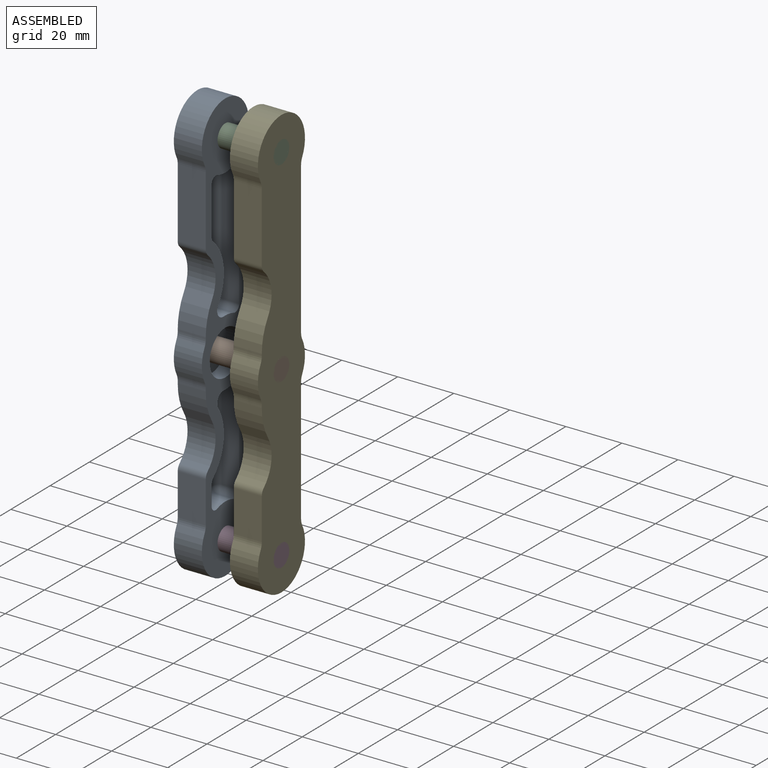
[diagram: assembled view]
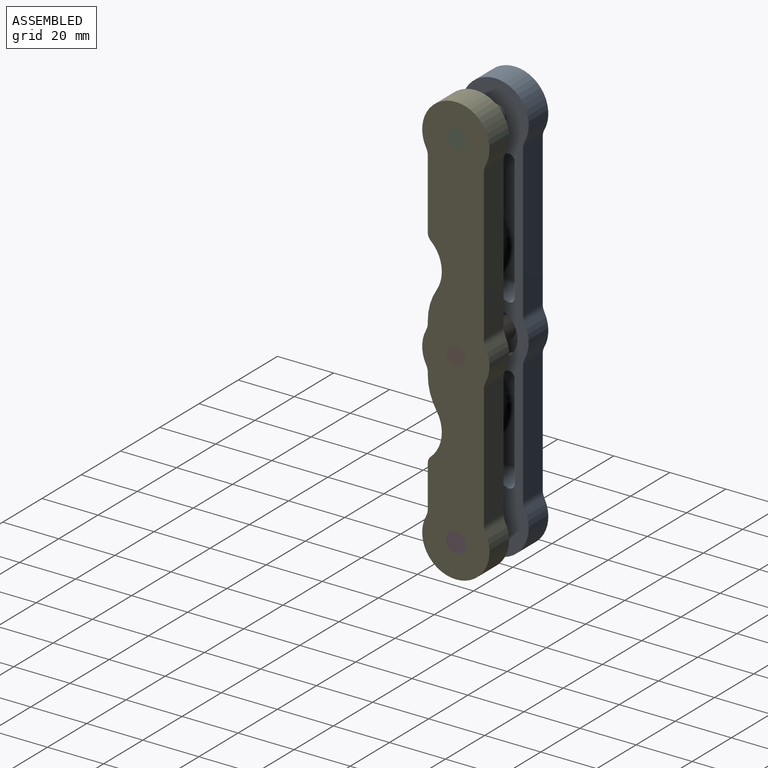
[diagram: assembled view, second angle]
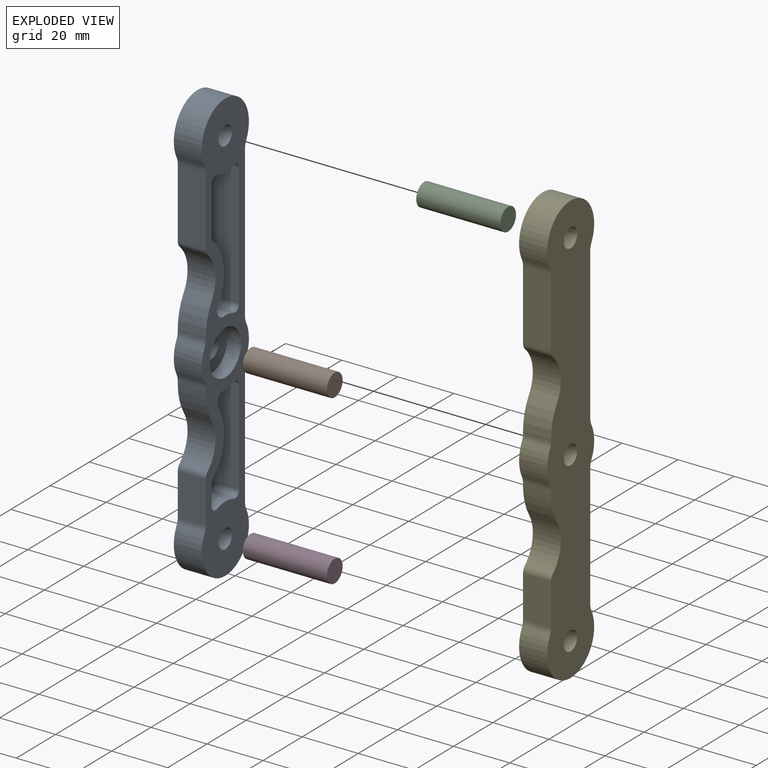
[diagram: exploded view]
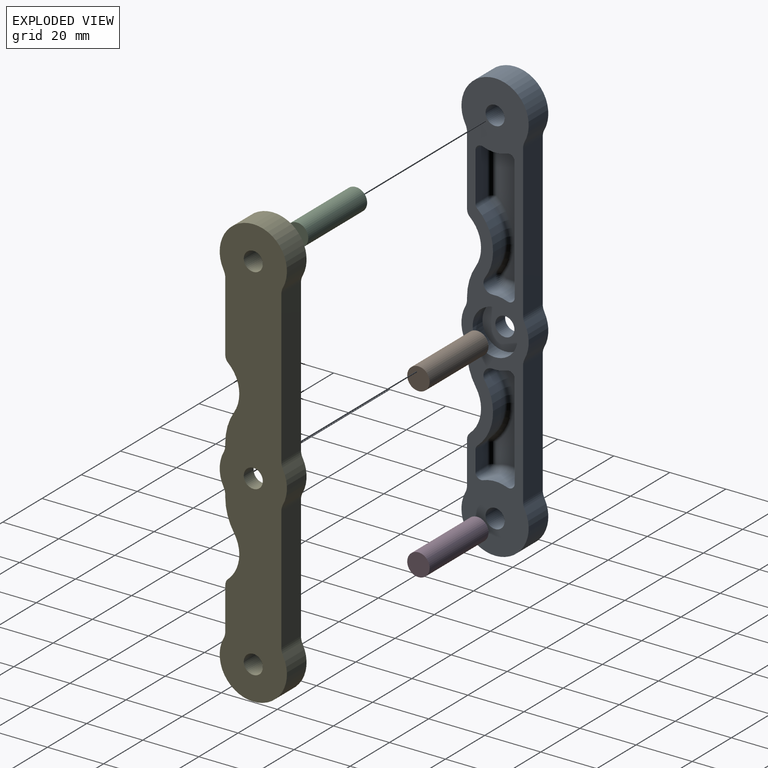
[diagram: exploded view, second angle]
ASSEMBLY  parts=5 mates=4
PART A: 73 faces, bbox 10x24x154 mm
  f0: cylinder r=2mm len=6mm, axis (-1,0,0), area 23.2mm2, adj f1,f36,f37,f57
  f1: plane 33.85x6mm, normal (0,-1,0), area 203.1mm2, adj f0,f2,f37,f55
  f2: cylinder r=2mm len=6mm, axis (-1,0,0), area 23.2mm2, adj f1,f3,f37,f54
  f3: cylinder r=12mm len=8.57mm, axis (-1,0,0), area 52.6mm2, adj f2,f4,f37,f56
  f4: cylinder r=2mm len=6mm, axis (-1,0,0), area 23.2mm2, adj f3,f5,f37,f58
  f5: plane 7.21x6mm, normal (0,1,0), area 43.3mm2, adj f4,f37,f60,f61
  f6: cylinder r=16.28mm len=21.54mm, axis (-1,0,0), area 142.6mm2, adj f7,f37,f61,f64
  f7: cylinder r=3mm len=6mm, axis (-1,0,0), area 40.5mm2, adj f6,f36,f37,f62
  f8: cylinder r=2mm len=6mm, axis (-1,0,0), area 23.2mm2, adj f9,f34,f37,f43
  f9: plane 43.85x6mm, normal (0,-1,0), area 263.1mm2, adj f8,f10,f37,f44
  f10: cylinder r=2mm len=6mm, axis (-1,0,0), area 23.2mm2, adj f9,f11,f37,f46
  f11: cylinder r=12mm len=6mm, axis (-1,0,0), area 31.8mm2, adj f10,f12,f37,f48
  f12: cylinder r=3mm len=6mm, axis (-1,0,0), area 40.5mm2, adj f11,f13,f37,f51
  f13: cylinder r=16.28mm len=21.54mm, axis (-1,0,0), area 142.6mm2, adj f12,f37,f49,f53
  f14: plane 17.21x6mm, normal (0,1,0), area 103.3mm2, adj f15,f37,f49,f50
  f15: cylinder r=2mm len=6mm, axis (-1,0,0), area 23.2mm2, adj f14,f34,f37,f47
  f16: cylinder r=12mm len=15.39mm, axis (-1,0,0), area 168.9mm2, adj f17,f35,f37,f38
  f17: cylinder r=20mm len=10.73mm, axis (-1,0,0), area 113.3mm2, adj f16,f18,f37,f38
  f18: plane 10x0.75mm, normal (0,-1,0), area 7.5mm2, adj f17,f37,f38,f65
  f19: cylinder r=12mm len=11.29mm, axis (-1,0,0), area 117.6mm2, adj f37,f38,f65,f66
  f20: plane 10x0.75mm, normal (0,-1,0), area 7.5mm2, adj f21,f37,f38,f66
  f21: cylinder r=20mm len=10.73mm, axis (-1,0,0), area 113.3mm2, adj f20,f22,f37,f38
  f22: cylinder r=12mm len=15.39mm, axis (-1,0,0), area 168.9mm2, adj f21,f23,f37,f38
  f23: cylinder r=3mm len=10mm, axis (-1,0,0), area 25.2mm2, adj f22,f24,f37,f38
  f24: plane 14.9x10mm, normal (0,-1,0), area 149mm2, adj f23,f37,f38,f67
  f25: cylinder r=12mm len=24mm, axis (-1,0,0), area 494.6mm2, adj f37,f38,f67,f68
  f26: plane 44x10mm, normal (0,1,0), area 440mm2, adj f37,f38,f68,f69
  f27: cylinder r=12mm len=11.29mm, axis (-1,0,0), area 117.6mm2, adj f37,f38,f69,f70
  f28: plane 54x10mm, normal (0,1,0), area 540mm2, adj f37,f38,f70,f71
  f29: cylinder r=12mm len=24mm, axis (-1,0,0), area 494.6mm2, adj f37,f38,f71,f72
  f30: plane 24.9x10mm, normal (0,-1,0), area 249mm2, adj f35,f37,f38,f72
  f31: cylinder r=3.4mm len=10mm, axis (-1,0,0), area 213.6mm2, adj f37,f38
  f32: cylinder r=3.4mm len=10mm, axis (-1,0,0), area 213.6mm2, adj f37,f38
  f33: cylinder r=8mm len=16mm, axis (-1,0,0), area 251.3mm2, adj f37,f42
  f34: cylinder r=12mm len=8.57mm, axis (-1,0,0), area 52.6mm2, adj f8,f15,f37,f45
  f35: cylinder r=3mm len=10mm, axis (-1,0,0), area 25.2mm2, adj f16,f30,f37,f38
  f36: cylinder r=12mm len=6mm, axis (-1,0,0), area 31.8mm2, adj f0,f7,f37,f59
  f37: plane 154x24mm, normal (1,0,0), area 1783.2mm2, adj f0,f1,f2,f3,f4,f5,f6,f7
  f38: plane 154x24mm, normal (-1,0,0), area 2869.6mm2, adj f16,f17,f18,f19,f20,f21,f22,f23
  f39: plane 33.85x10mm, normal (1,0,0), area 205.5mm2, adj f55,f56,f59,f60,f62,f64
  f40: plane 43.85x10mm, normal (1,0,0), area 305.5mm2, adj f44,f45,f48,f50,f51,f53
  f41: cylinder r=3.4mm len=6.8mm, axis (-1,0,0), area 106.8mm2, adj f38,f42
  f42: plane 16x16mm, normal (1,0,0), area 164.7mm2, adj f33,f41
  f43: sphere r=2mm, area 7.7mm2, adj f8,f44,f45
  f44: cylinder r=2mm len=43.85mm, axis (0,0,-1), area 137.7mm2, adj f9,f40,f43,f46
  f45: torus R=14mm, axis (1,0,0), area 29.2mm2, adj f34,f40,f43,f47
  f46: sphere r=2mm, area 7.7mm2, adj f10,f44,f48
  f47: sphere r=2mm, area 7.7mm2, adj f15,f45,f50
  f48: torus R=14mm, axis (1,0,0), area 17.7mm2, adj f11,f40,f46,f51
  f49: cylinder r=2mm len=6mm, axis (-1,0,0), area 10.3mm2, adj f13,f14,f37,f52
  f50: cylinder r=2mm len=17.21mm, axis (0,0,1), area 54.1mm2, adj f14,f40,f47,f52
  f51: torus R=1mm, axis (1,0,0), area 16.1mm2, adj f12,f40,f48,f53
  f52: sphere r=2mm, area 3.4mm2, adj f49,f50,f53
  f53: torus R=18.28mm, axis (1,0,0), area 78mm2, adj f13,f40,f51,f52
  f54: sphere r=2mm, area 7.7mm2, adj f2,f55,f56
  f55: cylinder r=2mm len=33.85mm, axis (0,0,-1), area 106.3mm2, adj f1,f39,f54,f57
  f56: torus R=14mm, axis (1,0,0), area 29.2mm2, adj f3,f39,f54,f58
  f57: sphere r=2mm, area 7.7mm2, adj f0,f55,f59
  f58: sphere r=2mm, area 7.7mm2, adj f4,f56,f60
  f59: torus R=14mm, axis (1,0,0), area 17.7mm2, adj f36,f39,f57,f62
  f60: cylinder r=2mm len=7.21mm, axis (0,0,1), area 22.7mm2, adj f5,f39,f58,f63
  f61: cylinder r=2mm len=6mm, axis (-1,0,0), area 10.3mm2, adj f5,f6,f37,f63
  f62: torus R=1mm, axis (1,0,0), area 16.1mm2, adj f7,f39,f59,f64
  f63: sphere r=2mm, area 3.4mm2, adj f60,f61,f64
  f64: torus R=18.28mm, axis (1,0,0), area 78mm2, adj f6,f39,f62,f63
  f65: cylinder r=5mm len=10mm, axis (-1,0,0), area 24.5mm2, adj f18,f19,f37,f38
  f66: cylinder r=5mm len=10mm, axis (-1,0,0), area 24.5mm2, adj f19,f20,f37,f38
  f67: cylinder r=5mm len=10mm, axis (-1,0,0), area 24.5mm2, adj f24,f25,f37,f38
  f68: cylinder r=5mm len=10mm, axis (-1,0,0), area 24.5mm2, adj f25,f26,f37,f38
  f69: cylinder r=5mm len=10mm, axis (-1,0,0), area 24.5mm2, adj f26,f27,f37,f38
  f70: cylinder r=5mm len=10mm, axis (-1,0,0), area 24.5mm2, adj f27,f28,f37,f38
  f71: cylinder r=5mm len=10mm, axis (-1,0,0), area 24.5mm2, adj f28,f29,f37,f38
  f72: cylinder r=5mm len=10mm, axis (-1,0,0), area 24.5mm2, adj f29,f30,f37,f38
PART B: 3 faces, bbox 8x30x8 mm
  f0: cylinder r=4mm len=30mm, axis (0,1,0), area 754mm2, adj f1,f2
  f1: plane 8x8mm, normal (0,-1,0), area 50.3mm2, adj f0
  f2: plane 8x8mm, normal (0,1,0), area 50.3mm2, adj f0
PART C: same geometry as B
PART D: same geometry as B
PART E: 73 faces, bbox 10x24x154 mm
  f0: cylinder r=2mm len=6mm, axis (1,0,0), area 23.2mm2, adj f1,f36,f37,f57
  f1: plane 33.85x6mm, normal (0,-1,0), area 203.1mm2, adj f0,f2,f37,f55
  f2: cylinder r=2mm len=6mm, axis (1,0,0), area 23.2mm2, adj f1,f3,f37,f54
  f3: cylinder r=12mm len=8.57mm, axis (1,0,0), area 52.6mm2, adj f2,f4,f37,f56
  f4: cylinder r=2mm len=6mm, axis (1,0,0), area 23.2mm2, adj f3,f5,f37,f58
  f5: plane 7.21x6mm, normal (0,1,0), area 43.3mm2, adj f4,f37,f60,f61
  f6: cylinder r=16.28mm len=21.54mm, axis (1,0,0), area 142.6mm2, adj f7,f37,f61,f64
  f7: cylinder r=3mm len=6mm, axis (1,0,0), area 40.5mm2, adj f6,f36,f37,f62
  f8: cylinder r=2mm len=6mm, axis (1,0,0), area 23.2mm2, adj f9,f34,f37,f43
  f9: plane 43.85x6mm, normal (0,-1,0), area 263.1mm2, adj f8,f10,f37,f44
  f10: cylinder r=2mm len=6mm, axis (1,0,0), area 23.2mm2, adj f9,f11,f37,f46
  f11: cylinder r=12mm len=6mm, axis (1,0,0), area 31.8mm2, adj f10,f12,f37,f48
  f12: cylinder r=3mm len=6mm, axis (1,0,0), area 40.5mm2, adj f11,f13,f37,f51
  f13: cylinder r=16.28mm len=21.54mm, axis (1,0,0), area 142.6mm2, adj f12,f37,f49,f53
  f14: plane 17.21x6mm, normal (0,1,0), area 103.3mm2, adj f15,f37,f49,f50
  f15: cylinder r=2mm len=6mm, axis (1,0,0), area 23.2mm2, adj f14,f34,f37,f47
  f16: cylinder r=12mm len=15.39mm, axis (1,0,0), area 168.9mm2, adj f17,f35,f37,f38
  f17: cylinder r=20mm len=10.73mm, axis (1,0,0), area 113.3mm2, adj f16,f18,f37,f38
  f18: plane 10x0.75mm, normal (0,-1,0), area 7.5mm2, adj f17,f37,f38,f65
  f19: cylinder r=12mm len=11.29mm, axis (1,0,0), area 117.6mm2, adj f37,f38,f65,f66
  f20: plane 10x0.75mm, normal (0,-1,0), area 7.5mm2, adj f21,f37,f38,f66
  f21: cylinder r=20mm len=10.73mm, axis (1,0,0), area 113.3mm2, adj f20,f22,f37,f38
  f22: cylinder r=12mm len=15.39mm, axis (1,0,0), area 168.9mm2, adj f21,f23,f37,f38
  f23: cylinder r=3mm len=10mm, axis (1,0,0), area 25.2mm2, adj f22,f24,f37,f38
  f24: plane 14.9x10mm, normal (0,-1,0), area 149mm2, adj f23,f37,f38,f67
  f25: cylinder r=12mm len=24mm, axis (1,0,0), area 494.6mm2, adj f37,f38,f67,f68
  f26: plane 44x10mm, normal (0,1,0), area 440mm2, adj f37,f38,f68,f69
  f27: cylinder r=12mm len=11.29mm, axis (1,0,0), area 117.6mm2, adj f37,f38,f69,f70
  f28: plane 54x10mm, normal (0,1,0), area 540mm2, adj f37,f38,f70,f71
  f29: cylinder r=12mm len=24mm, axis (1,0,0), area 494.6mm2, adj f37,f38,f71,f72
  f30: plane 24.9x10mm, normal (0,-1,0), area 249mm2, adj f35,f37,f38,f72
  f31: cylinder r=3.4mm len=10mm, axis (1,0,0), area 213.6mm2, adj f37,f38
  f32: cylinder r=3.4mm len=10mm, axis (1,0,0), area 213.6mm2, adj f37,f38
  f33: cylinder r=8mm len=16mm, axis (1,0,0), area 251.3mm2, adj f37,f42
  f34: cylinder r=12mm len=8.57mm, axis (1,0,0), area 52.6mm2, adj f8,f15,f37,f45
  f35: cylinder r=3mm len=10mm, axis (1,0,0), area 25.2mm2, adj f16,f30,f37,f38
  f36: cylinder r=12mm len=6mm, axis (1,0,0), area 31.8mm2, adj f0,f7,f37,f59
  f37: plane 154x24mm, normal (-1,0,0), area 1783.2mm2, adj f0,f1,f2,f3,f4,f5,f6,f7
  f38: plane 154x24mm, normal (1,0,0), area 2869.6mm2, adj f16,f17,f18,f19,f20,f21,f22,f23
  f39: plane 33.85x10mm, normal (-1,0,0), area 205.5mm2, adj f55,f56,f59,f60,f62,f64
  f40: plane 43.85x10mm, normal (-1,0,0), area 305.5mm2, adj f44,f45,f48,f50,f51,f53
  f41: cylinder r=3.4mm len=6.8mm, axis (1,0,0), area 106.8mm2, adj f38,f42
  f42: plane 16x16mm, normal (-1,0,0), area 164.7mm2, adj f33,f41
  f43: sphere r=2mm, area 7.7mm2, adj f8,f44,f45
  f44: cylinder r=2mm len=43.85mm, axis (0,0,-1), area 137.7mm2, adj f9,f40,f43,f46
  f45: torus R=14mm, axis (-1,0,0), area 29.2mm2, adj f34,f40,f43,f47
  f46: sphere r=2mm, area 7.7mm2, adj f10,f44,f48
  f47: sphere r=2mm, area 7.7mm2, adj f15,f45,f50
  f48: torus R=14mm, axis (-1,0,0), area 17.7mm2, adj f11,f40,f46,f51
  f49: cylinder r=2mm len=6mm, axis (1,0,0), area 10.3mm2, adj f13,f14,f37,f52
  f50: cylinder r=2mm len=17.21mm, axis (0,0,1), area 54.1mm2, adj f14,f40,f47,f52
  f51: torus R=1mm, axis (-1,0,0), area 16.1mm2, adj f12,f40,f48,f53
  f52: sphere r=2mm, area 3.4mm2, adj f49,f50,f53
  f53: torus R=18.28mm, axis (-1,0,0), area 78mm2, adj f13,f40,f51,f52
  f54: sphere r=2mm, area 7.7mm2, adj f2,f55,f56
  f55: cylinder r=2mm len=33.85mm, axis (0,0,-1), area 106.3mm2, adj f1,f39,f54,f57
  f56: torus R=14mm, axis (-1,0,0), area 29.2mm2, adj f3,f39,f54,f58
  f57: sphere r=2mm, area 7.7mm2, adj f0,f55,f59
  f58: sphere r=2mm, area 7.7mm2, adj f4,f56,f60
  f59: torus R=14mm, axis (-1,0,0), area 17.7mm2, adj f36,f39,f57,f62
  f60: cylinder r=2mm len=7.21mm, axis (0,0,1), area 22.7mm2, adj f5,f39,f58,f63
  f61: cylinder r=2mm len=6mm, axis (1,0,0), area 10.3mm2, adj f5,f6,f37,f63
  f62: torus R=1mm, axis (-1,0,0), area 16.1mm2, adj f7,f39,f59,f64
  f63: sphere r=2mm, area 3.4mm2, adj f60,f61,f64
  f64: torus R=18.28mm, axis (-1,0,0), area 78mm2, adj f6,f39,f62,f63
  f65: cylinder r=5mm len=10mm, axis (1,0,0), area 24.5mm2, adj f18,f19,f37,f38
  f66: cylinder r=5mm len=10mm, axis (1,0,0), area 24.5mm2, adj f19,f20,f37,f38
  f67: cylinder r=5mm len=10mm, axis (1,0,0), area 24.5mm2, adj f24,f25,f37,f38
  f68: cylinder r=5mm len=10mm, axis (1,0,0), area 24.5mm2, adj f25,f26,f37,f38
  f69: cylinder r=5mm len=10mm, axis (1,0,0), area 24.5mm2, adj f26,f27,f37,f38
  f70: cylinder r=5mm len=10mm, axis (1,0,0), area 24.5mm2, adj f27,f28,f37,f38
  f71: cylinder r=5mm len=10mm, axis (1,0,0), area 24.5mm2, adj f28,f29,f37,f38
  f72: cylinder r=5mm len=10mm, axis (1,0,0), area 24.5mm2, adj f29,f30,f37,f38
PLACE A t=(10.66,14.15,2.66)mm
PLACE B rot(axis=(-0.58,-0.58,-0.58),120deg) t=(40.66,14.15,25.51)mm
PLACE C rot(axis=(-0.58,-0.58,-0.58),120deg) t=(40.66,14.15,95.51)mm
PLACE D rot(axis=(-0.58,-0.58,-0.58),120deg) t=(40.66,14.15,-34.49)mm
PLACE E t=(-9.34,14.15,2.66)mm
MATE fastened D.f0 <-> A.f25  axis (1,0,0) through (10.66,14.15,-57.34)mm
MATE fastened C.f0 <-> A.f29  axis (-1,0,0) through (10.66,14.15,72.66)mm
MATE fastened B.f0 <-> A.f41  axis (-1,0,0) through (10.66,14.15,2.66)mm
MATE fastened E.f29 <-> C.f0  axis (1,0,0) through (40.66,14.15,72.66)mm
